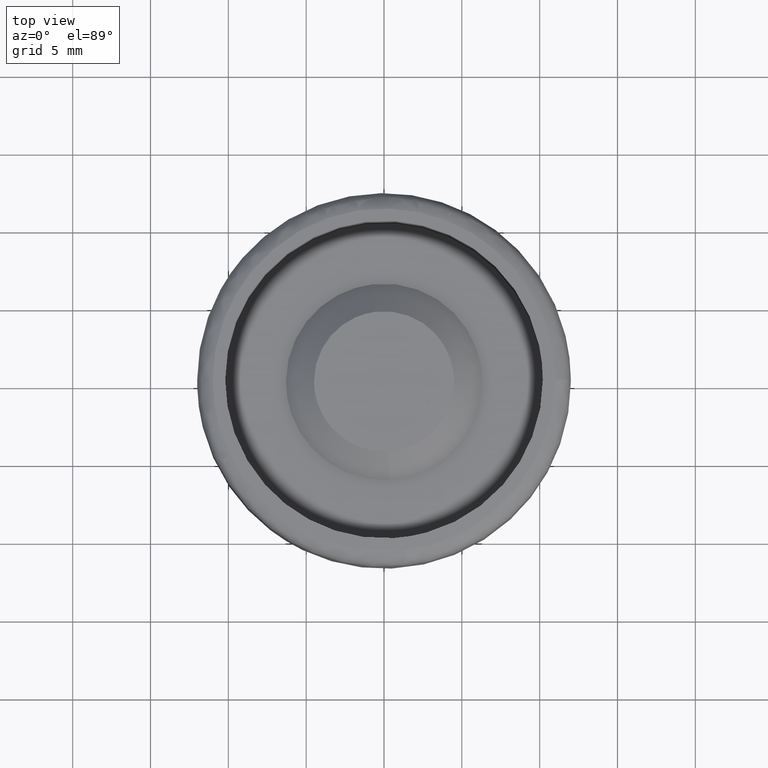
[diagram: clean part render]
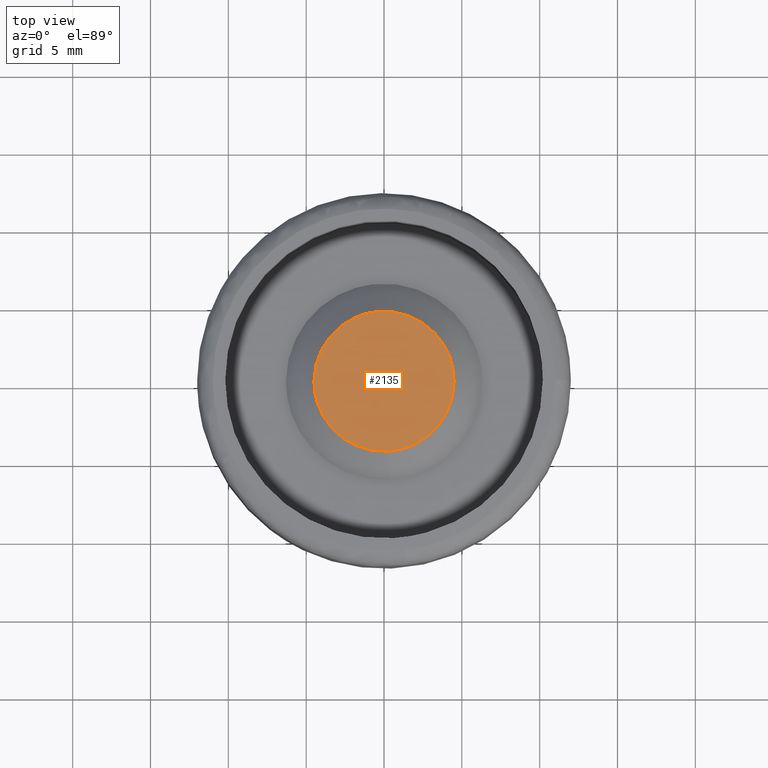
[diagram: same view with one face highlighted and labeled with its STEP entity id]
A machine part, top view. The second image highlights one B-rep face of the part: STEP entity #2135.
In plain terms, the highlighted face is a freeform B-spline surface patch.
Its self-contained STEP definition (entity closure, byte-faithful):
#865=CARTESIAN_POINT('',(-0.531154055962184,4.468542868636585,10.499999999999259));
#866=VERTEX_POINT('',#865);
#867=CARTESIAN_POINT('',(4.500000000000000,0.0,10.500000000000000));
#868=VERTEX_POINT('',#867);
#869=CARTESIAN_POINT('',(-0.531154055962184,4.468542868636585,10.499999999999265));
#870=CARTESIAN_POINT('',(-0.266508538440333,4.499999999999999,10.500000000000005));
#871=CARTESIAN_POINT('',(0.0,4.500000000000000,10.500000000000000));
#872=CARTESIAN_POINT('',(4.500000000000000,4.500000000000000,10.500000000000000));
#873=CARTESIAN_POINT('',(4.500000000000000,0.0,10.500000000000000));
#881=(BOUNDED_CURVE()B_SPLINE_CURVE(2,(#869,#870,#871,#872,#873),.UNSPECIFIED.,.F.,.U.)B_SPLINE_CURVE_WITH_KNOTS((3,2,3),(0.229562473515140,0.250000000000000,0.500000000000000),.UNSPECIFIED.)CURVE()GEOMETRIC_REPRESENTATION_ITEM()RATIONAL_B_SPLINE_CURVE((0.956026754186897,0.976055948333057,1.0,0.707106781186547,1.0))REPRESENTATION_ITEM(''));
#882=EDGE_CURVE('',#866,#868,#881,.T.);
#884=CARTESIAN_POINT('',(0.274718427977463,-4.491606592903809,10.499999999991910));
#885=VERTEX_POINT('',#884);
#886=CARTESIAN_POINT('',(4.500000000000000,0.0,10.500000000000000));
#887=CARTESIAN_POINT('',(4.500000000000001,-4.233177300943412,10.500000000000000));
#888=CARTESIAN_POINT('',(0.274718427977463,-4.491606592903809,10.499999999991907));
#896=(BOUNDED_CURVE()B_SPLINE_CURVE(2,(#886,#887,#888),.UNSPECIFIED.,.F.,.U.)B_SPLINE_CURVE_WITH_KNOTS((3,3),(0.500000000000000,0.739332962236589),.UNSPECIFIED.)CURVE()GEOMETRIC_REPRESENTATION_ITEM()RATIONAL_B_SPLINE_CURVE((1.0,0.719603993289468,0.976072041661673))REPRESENTATION_ITEM(''));
#897=EDGE_CURVE('',#868,#885,#896,.T.);
#964=CARTESIAN_POINT('',(-4.500000000000000,0.0,10.500000000000000));
#965=VERTEX_POINT('',#964);
#966=CARTESIAN_POINT('',(-4.500000000000000,0.0,10.500000000000000));
#967=CARTESIAN_POINT('',(-4.500000000000001,3.996785366769143,10.500000000000000));
#968=CARTESIAN_POINT('',(-0.531154055962184,4.468542868636585,10.499999999999257));
#976=(BOUNDED_CURVE()B_SPLINE_CURVE(2,(#966,#967,#968),.UNSPECIFIED.,.F.,.U.)B_SPLINE_CURVE_WITH_KNOTS((3,3),(0.0,0.229562473515140),.UNSPECIFIED.)CURVE()GEOMETRIC_REPRESENTATION_ITEM()RATIONAL_B_SPLINE_CURVE((1.0,0.731050832853491,0.956026754186897))REPRESENTATION_ITEM(''));
#977=EDGE_CURVE('',#965,#866,#976,.T.);
#1011=CARTESIAN_POINT('',(0.274718427977463,-4.491606592903809,10.499999999991910));
#1012=CARTESIAN_POINT('',(0.137487434913860,-4.500000000000000,10.500000000000004));
#1013=CARTESIAN_POINT('',(0.0,-4.500000000000000,10.500000000000000));
#1014=CARTESIAN_POINT('',(-4.500000000000000,-4.500000000000000,10.500000000000000));
#1015=CARTESIAN_POINT('',(-4.500000000000000,0.0,10.500000000000000));
#1023=(BOUNDED_CURVE()B_SPLINE_CURVE(2,(#1011,#1012,#1013,#1014,#1015),.UNSPECIFIED.,.F.,.U.)B_SPLINE_CURVE_WITH_KNOTS((3,2,3),(0.739332962236589,0.750000000000000,1.0),.UNSPECIFIED.)CURVE()GEOMETRIC_REPRESENTATION_ITEM()RATIONAL_B_SPLINE_CURVE((0.976072041661673,0.987502787897080,1.0,0.707106781186547,1.0))REPRESENTATION_ITEM(''));
#1024=EDGE_CURVE('',#885,#965,#1023,.T.);
#2124=CARTESIAN_POINT('',(-4.949549982556253,-4.949440710012740,10.500000000000000));
#2125=CARTESIAN_POINT('',(4.949550223955065,-4.949440710012740,10.500000000000000));
#2126=CARTESIAN_POINT('',(-4.949549982556253,4.949468149010964,10.500000000000000));
#2127=CARTESIAN_POINT('',(4.949550223955065,4.949468149010964,10.500000000000000));
#2128=B_SPLINE_SURFACE_WITH_KNOTS('',1,1,((#2124,#2126),(#2125,#2127)),.UNSPECIFIED.,.F.,.F.,.U.,(2,2),(2,2),(0.0,9.899100206511317),(0.0,9.898908859023704),.UNSPECIFIED.);
#2129=ORIENTED_EDGE('',*,*,#1024,.F.);
#2130=ORIENTED_EDGE('',*,*,#897,.F.);
#2131=ORIENTED_EDGE('',*,*,#882,.F.);
#2132=ORIENTED_EDGE('',*,*,#977,.F.);
#2133=EDGE_LOOP('',(#2129,#2130,#2131,#2132));
#2134=FACE_OUTER_BOUND('',#2133,.T.);
#2135=ADVANCED_FACE('',(#2134),#2128,.T.);